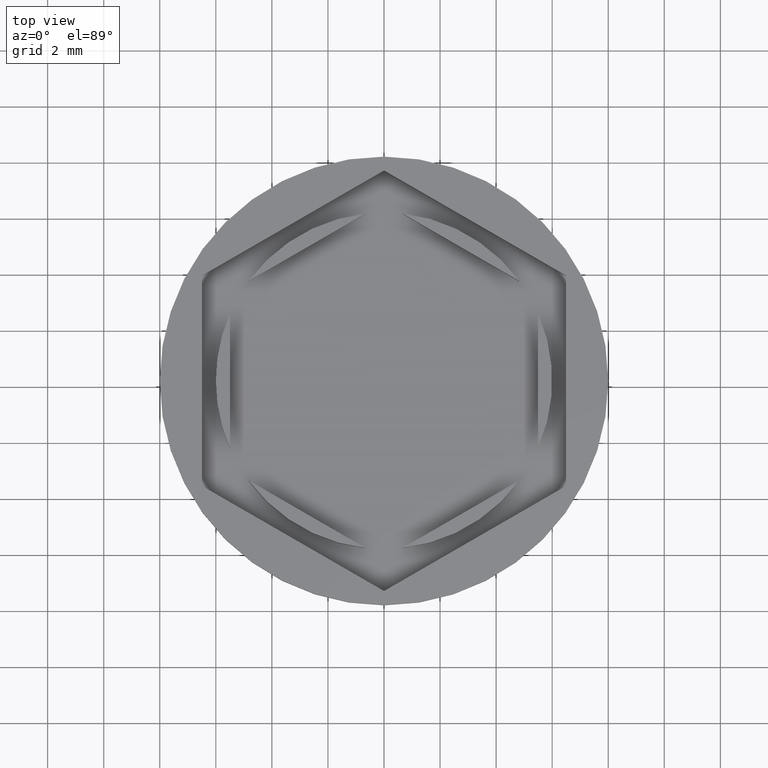
[diagram: clean part render]
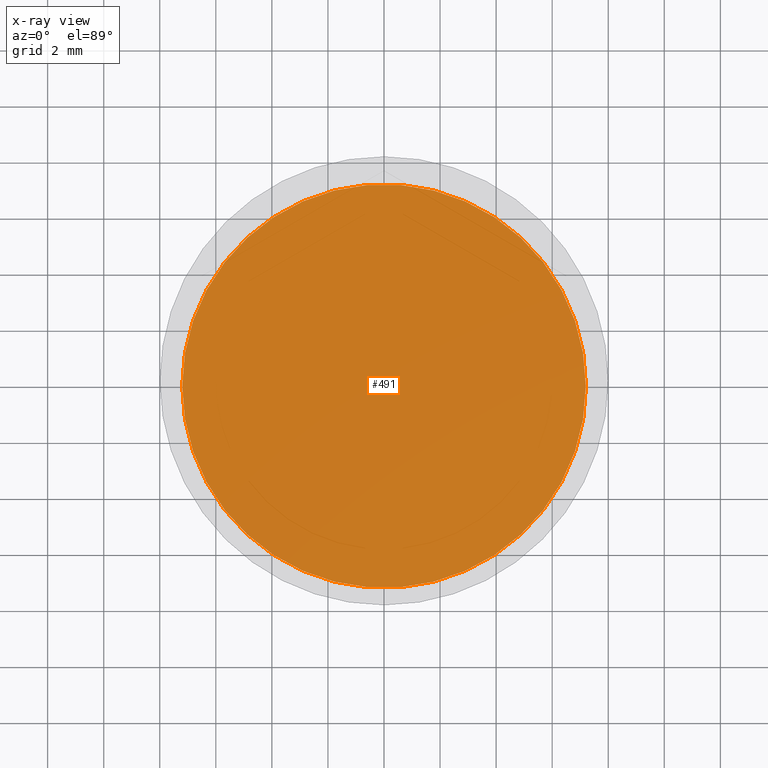
[diagram: x-ray — body ghosted, one internal face saturated and labeled with its STEP entity id]
A machine part, top view, then the same camera in x-ray: the body is ghosted and one INTERNAL B-rep face — a face not visible from any outside direction — is saturated and labeled: STEP entity #491.
In plain terms, the highlighted planar face has unit normal (0, 0, -1).
Its self-contained STEP definition (entity closure, byte-faithful):
#18 = PLANE ( 'NONE',  #1791 ) ;
#175 = DIRECTION ( 'NONE',  ( -1.000000000000000000, 0.000000000000000000, -0.000000000000000000 ) ) ;
#253 = DIRECTION ( 'NONE',  ( -1.000000000000000000, 0.000000000000000000, 0.000000000000000000 ) ) ;
#347 = DIRECTION ( 'NONE',  ( -1.000000000000000000, 0.000000000000000000, 0.000000000000000000 ) ) ;
#361 = EDGE_CURVE ( 'NONE', #1415, #1219, #1284, .T. ) ;
#481 = CARTESIAN_POINT ( 'NONE',  ( -7.200000000000001954, 0.000000000000000000, -11.00000000000000000 ) ) ;
#491 = ADVANCED_FACE ( 'NONE', ( #1243 ), #18, .F. ) ;
#511 = CIRCLE ( 'NONE', #1743, 7.200000000000001954 ) ;
#620 = DIRECTION ( 'NONE',  ( 0.000000000000000000, 0.000000000000000000, -1.000000000000000000 ) ) ;
#781 = CARTESIAN_POINT ( 'NONE',  ( 0.000000000000000000, 0.000000000000000000, -11.00000000000000000 ) ) ;
#1003 = CARTESIAN_POINT ( 'NONE',  ( 7.200000000000001954, 9.001153973733047589E-16, -11.00000000000000000 ) ) ;
#1219 = VERTEX_POINT ( 'NONE', #481 ) ;
#1243 = FACE_OUTER_BOUND ( 'NONE', #1398, .T. ) ;
#1283 = DIRECTION ( 'NONE',  ( -0.000000000000000000, -0.000000000000000000, 1.000000000000000000 ) ) ;
#1284 = CIRCLE ( 'NONE', #1440, 7.200000000000001954 ) ;
#1398 = EDGE_LOOP ( 'NONE', ( #1492, #1491 ) ) ;
#1415 = VERTEX_POINT ( 'NONE', #1003 ) ;
#1440 = AXIS2_PLACEMENT_3D ( 'NONE', #1929, #1512, #253 ) ;
#1491 = ORIENTED_EDGE ( 'NONE', *, *, #361, .T. ) ;
#1492 = ORIENTED_EDGE ( 'NONE', *, *, #1949, .T. ) ;
#1512 = DIRECTION ( 'NONE',  ( -0.000000000000000000, -0.000000000000000000, 1.000000000000000000 ) ) ;
#1576 = CARTESIAN_POINT ( 'NONE',  ( 0.000000000000000000, 0.000000000000000000, -11.00000000000000000 ) ) ;
#1743 = AXIS2_PLACEMENT_3D ( 'NONE', #1576, #1283, #347 ) ;
#1791 = AXIS2_PLACEMENT_3D ( 'NONE', #781, #620, #175 ) ;
#1929 = CARTESIAN_POINT ( 'NONE',  ( 0.000000000000000000, 0.000000000000000000, -11.00000000000000000 ) ) ;
#1949 = EDGE_CURVE ( 'NONE', #1219, #1415, #511, .T. ) ;